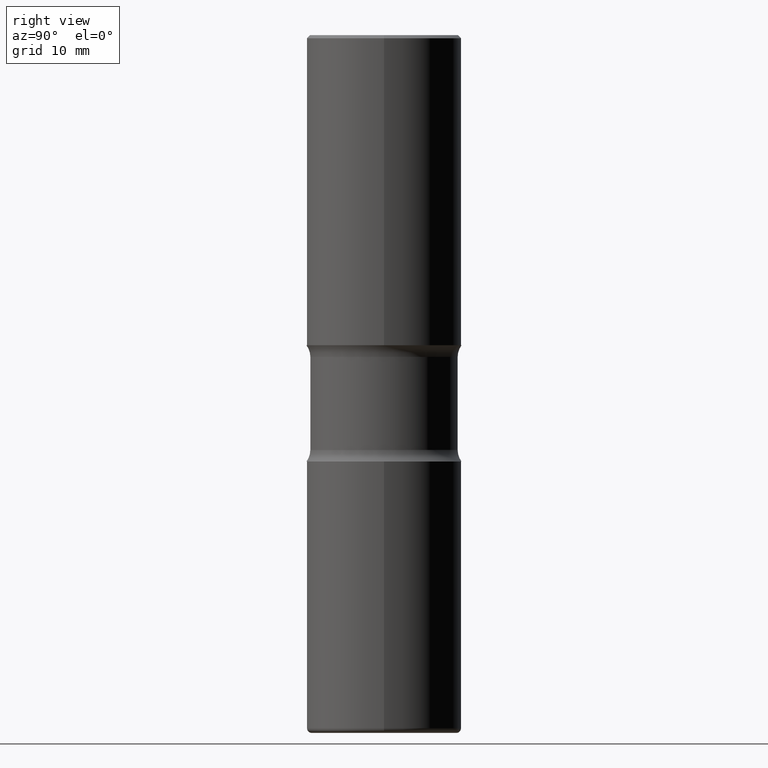
[diagram: clean part render]
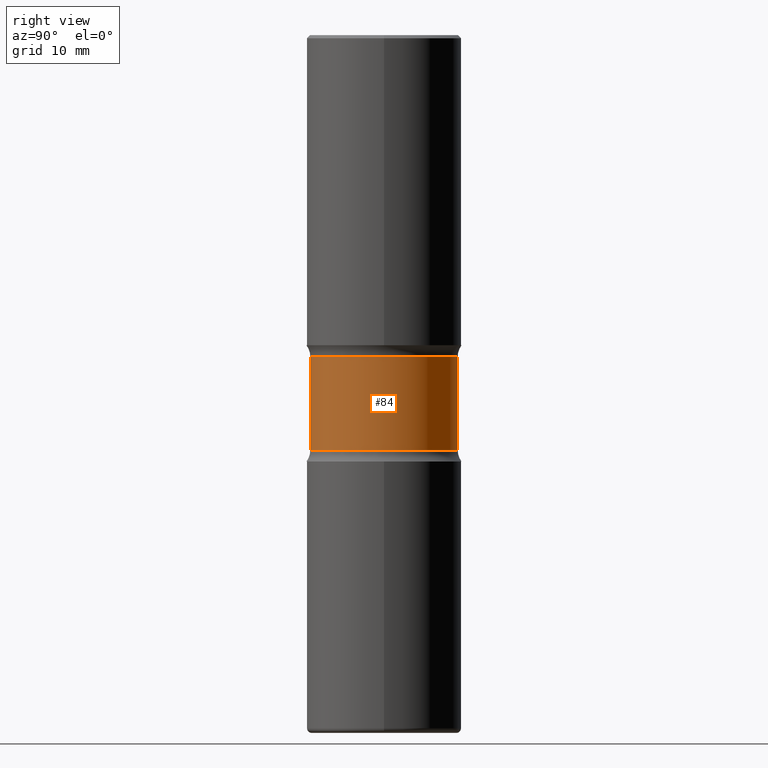
[diagram: same view with one face highlighted and labeled with its STEP entity id]
A machine part, right view. The second image highlights one B-rep face of the part: STEP entity #84.
In plain terms, the highlighted cylindrical surface (partial cylindrical patch) has radius 12.065 mm, axis along (0, -0, -1).
Its self-contained STEP definition (entity closure, byte-faithful):
#3 = AXIS2_PLACEMENT_3D ( 'NONE', #280, #151, #99 ) ;
#9 = AXIS2_PLACEMENT_3D ( 'NONE', #166, #87, #336 ) ;
#47 = EDGE_CURVE ( 'NONE', #524, #533, #466, .T. ) ;
#58 = EDGE_CURVE ( 'NONE', #524, #403, #141, .T. ) ;
#84 = ADVANCED_FACE ( 'NONE', ( #85 ), #332, .T. ) ;
#85 = FACE_OUTER_BOUND ( 'NONE', #159, .T. ) ;
#87 = DIRECTION ( 'NONE',  ( 2.420803642536714607E-29, -3.526803257041618016E-15, -1.000000000000000000 ) ) ;
#99 = DIRECTION ( 'NONE',  ( 6.982962677686265133E-15, 1.000000000000000000, -3.450755360418016739E-15 ) ) ;
#129 = LINE ( 'NONE', #160, #279 ) ;
#141 = CIRCLE ( 'NONE', #9, 0.4749999999999999778 ) ;
#151 = DIRECTION ( 'NONE',  ( 2.420803642536714607E-29, -3.526803257041618016E-15, -1.000000000000000000 ) ) ;
#159 = EDGE_LOOP ( 'NONE', ( #200, #461, #447, #559 ) ) ;
#160 = CARTESIAN_POINT ( 'NONE',  ( -3.258736548941367209E-15, -0.4750000000000157430, -4.499999999999999112 ) ) ;
#165 = CARTESIAN_POINT ( 'NONE',  ( 3.316907271901085550E-15, 0.4749999999999842126, -4.500000000000002665 ) ) ;
#166 = CARTESIAN_POINT ( 'NONE',  ( 5.090996758296847983E-29, -7.220981483315563230E-15, -2.075000000000001954 ) ) ;
#189 = AXIS2_PLACEMENT_3D ( 'NONE', #501, #504, #290 ) ;
#200 = ORIENTED_EDGE ( 'NONE', *, *, #58, .T. ) ;
#231 = CARTESIAN_POINT ( 'NONE',  ( -3.344492773913572412E-15, -0.4750000000000072498, -2.075000000000000178 ) ) ;
#245 = EDGE_CURVE ( 'NONE', #533, #462, #348, .T. ) ;
#279 = VECTOR ( 'NONE', #362, 39.37007874015748143 ) ;
#280 = CARTESIAN_POINT ( 'NONE',  ( 6.543478943818874561E-29, -9.337063437540531752E-15, -2.675000000000000711 ) ) ;
#290 = DIRECTION ( 'NONE',  ( 6.982962677686265133E-15, 1.000000000000000000, -3.450755360418016739E-15 ) ) ;
#320 = CARTESIAN_POINT ( 'NONE',  ( 3.316907271901041374E-15, 0.4749999999999906519, -2.675000000000002487 ) ) ;
#332 = CYLINDRICAL_SURFACE ( 'NONE', #189, 0.4749999999999999778 ) ;
#336 = DIRECTION ( 'NONE',  ( 6.982962677686265133E-15, 1.000000000000000000, -3.450755360418016739E-15 ) ) ;
#348 = CIRCLE ( 'NONE', #3, 0.4749999999999999778 ) ;
#362 = DIRECTION ( 'NONE',  ( 2.420803642536714607E-29, -3.526803257041618016E-15, -1.000000000000000000 ) ) ;
#403 = VERTEX_POINT ( 'NONE', #231 ) ;
#432 = EDGE_CURVE ( 'NONE', #403, #462, #129, .T. ) ;
#447 = ORIENTED_EDGE ( 'NONE', *, *, #245, .F. ) ;
#461 = ORIENTED_EDGE ( 'NONE', *, *, #432, .T. ) ;
#462 = VERTEX_POINT ( 'NONE', #534 ) ;
#466 = LINE ( 'NONE', #165, #550 ) ;
#501 = CARTESIAN_POINT ( 'NONE',  ( 1.096144559144837880E-28, -1.577347938164148721E-14, -4.500000000000000888 ) ) ;
#504 = DIRECTION ( 'NONE',  ( 2.420803642536714607E-29, -3.526803257041618016E-15, -1.000000000000000000 ) ) ;
#524 = VERTEX_POINT ( 'NONE', #544 ) ;
#533 = VERTEX_POINT ( 'NONE', #320 ) ;
#534 = CARTESIAN_POINT ( 'NONE',  ( -3.344492773913557423E-15, -0.4750000000000094147, -2.674999999999999378 ) ) ;
#544 = CARTESIAN_POINT ( 'NONE',  ( 3.316907271901027175E-15, 0.4749999999999927613, -2.075000000000003286 ) ) ;
#550 = VECTOR ( 'NONE', #558, 39.37007874015748143 ) ;
#558 = DIRECTION ( 'NONE',  ( 2.420803642536714607E-29, -3.526803257041618016E-15, -1.000000000000000000 ) ) ;
#559 = ORIENTED_EDGE ( 'NONE', *, *, #47, .F. ) ;